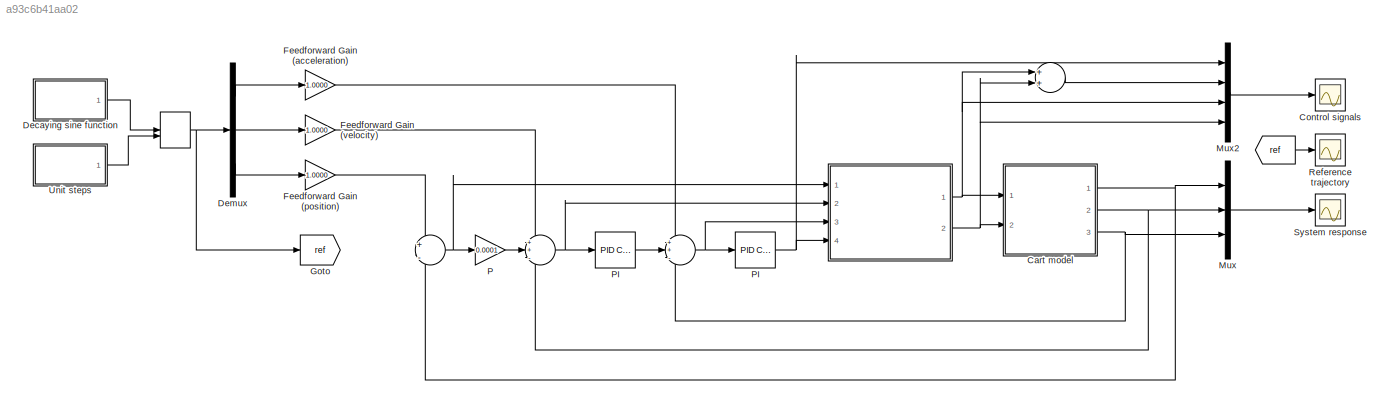
MODEL slx_a93c6b41aa02
KIND model
CONFIG AbsTol = auto
CONFIG FixedStep = auto
CONFIG MaxStep = auto
CONFIG MinStep = auto
CONFIG RelTol = 1e-3
CONFIG SampleTimeConstraint = Unconstrained
CONFIG Solver = VariableStepAuto
CONFIG SolverMode = Auto
CONFIG SolverName = VariableStepAuto
CONFIG StartTime = 0.0
CONFIG StopTime = 10.0
BLOCK [ModelReference]  
  CopyOfModelName = CN_filter.slx
  ModelNameDialog = CN_filter.slx
  ModelReferenceVersion = 1.9
  Ports = [4, 2]
  Variant = off
BLOCK [Sum]   
  InputSameDT = off
  OutDataTypeStr = Inherit: Inherit via internal rule
  Ports = [2, 1]
  SaturateOnIntegerOverflow = off
BLOCK [ManualSwitch]    
BLOCK [From]      
  GotoTag = ref
BLOCK [Sum]         
  IconShape = round
  InputSameDT = off
  Inputs = ++-
  OutDataTypeStr = Inherit: Inherit via internal rule
  Ports = [3, 1]
  SaturateOnIntegerOverflow = off
BLOCK [Sum]          
  IconShape = round
  InputSameDT = off
  Inputs = ++-
  OutDataTypeStr = Inherit: Inherit via internal rule
  Ports = [3, 1]
  SaturateOnIntegerOverflow = off
BLOCK [Sum]            
  IconShape = round
  InputSameDT = off
  Inputs = +|-
  OutDataTypeStr = Inherit: Inherit via internal rule
  Ports = [2, 1]
  SaturateOnIntegerOverflow = off
BLOCK [Reference]   PI      REF=simulink/Continuous/PID Controller
  Ports = [1, 1]
  SourceBlock = simulink/Continuous/PID Controller
  SourceType = PID 1dof
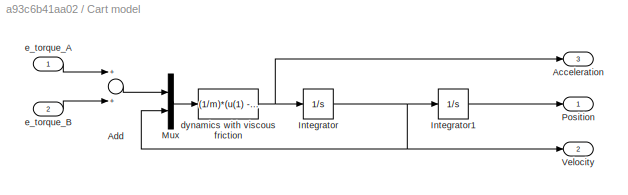
BLOCK [SubSystem] Cart model
  Ports = [2, 3]
  RequestExecContextInheritance = off
  Variant = off
BLOCK [Outport] Cart model/Acceleration
  IconDisplay = Port number
  Port = 3
BLOCK [Sum] Cart model/Add
  InputSameDT = off
  OutDataTypeStr = Inherit: Inherit via internal rule
  Ports = [2, 1]
  SaturateOnIntegerOverflow = off
BLOCK [Integrator] Cart model/Integrator
  Ports = [1, 1]
BLOCK [Integrator] Cart model/Integrator1
  Ports = [1, 1]
BLOCK [Mux] Cart model/Mux
  DisplayOption = bar
  Inputs = 2
  Ports = [2, 1]
BLOCK [Outport] Cart model/Position
  IconDisplay = Port number
BLOCK [Outport] Cart model/Velocity
  IconDisplay = Port number
  Port = 2
BLOCK [Fcn] Cart model/dynamics with viscous friction
  Expr = (1/m)*(u(1) - b*u(2))
BLOCK [Inport] Cart model/e_torque_A
  IconDisplay = Port number
BLOCK [Inport] Cart model/e_torque_B
  IconDisplay = Port number
  Port = 2
BLOCK [Scope] Control signals
  Ports = [1]
  ScopeSpecificationString = Simulink.scopes.TimeScopeBlockCfg('CurrentConfiguration', extmgr.ConfigurationSet(extmgr.Configuration('Core','General UI',true),extmgr.Configuration('Core','Source UI',true),extmgr.Configuration('Sources','WiredSimulink',true,'DataLoggingVariableName','ScopeData2','DataLoggingLimitDataPoints',true,'DataLoggingSaveFormat','Array','DataLoggingDecimation','1','DataLoggingDecimateData',true),extmgr.C...<+1549ch>
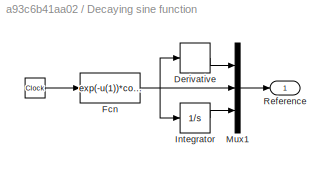
BLOCK [SubSystem] Decaying sine function
  Ports = [0, 1]
  RequestExecContextInheritance = off
  Variant = off
BLOCK [Clock] Decaying sine function/  
BLOCK [Derivative] Decaying sine function/Derivative
BLOCK [Fcn] Decaying sine function/Fcn
  Expr = exp(-u(1))*cos(2*pi*u(1))
BLOCK [Integrator] Decaying sine function/Integrator
  Ports = [1, 1]
BLOCK [Mux] Decaying sine function/Mux1
  DisplayOption = bar
  Inputs = 3
  Ports = [3, 1]
BLOCK [Outport] Decaying sine function/Reference
  IconDisplay = Port number
BLOCK [Demux] Demux
  DisplayOption = bar
  Outputs = 3
  Ports = [1, 3]
BLOCK [Gain] Feedforward Gain (acceleration)
  Gain = 1.0000
  OutDataTypeStr = Inherit: Inherit via internal rule
  ParamDataTypeStr = Inherit: Inherit via internal rule
  SaturateOnIntegerOverflow = off
BLOCK [Gain] Feedforward Gain (position)
  Gain = 1.0000
  OutDataTypeStr = Inherit: Inherit via internal rule
  ParamDataTypeStr = Inherit: Inherit via internal rule
  SaturateOnIntegerOverflow = off
BLOCK [Gain] Feedforward Gain (velocity)
  Gain = 1.0000
  OutDataTypeStr = Inherit: Inherit via internal rule
  ParamDataTypeStr = Inherit: Inherit via internal rule
  SaturateOnIntegerOverflow = off
BLOCK [Goto] Goto
  GotoTag = ref
BLOCK [Mux] Mux
  DisplayOption = bar
  Inputs = 3
  Ports = [3, 1]
BLOCK [Mux] Mux2
  DisplayOption = bar
  Ports = [4, 1]
BLOCK [Gain] P
  Gain = 0.0001
  OutDataTypeStr = Inherit: Inherit via internal rule
  ParamDataTypeStr = Inherit: Inherit via internal rule
  SaturateOnIntegerOverflow = off
BLOCK [Reference] PI  REF=simulink/Continuous/PID Controller
  Ports = [1, 1]
  SourceBlock = simulink/Continuous/PID Controller
  SourceType = PID 1dof
BLOCK [Scope] Reference trajectory
  Ports = [1]
  ScopeSpecificationString = Simulink.scopes.TimeScopeBlockCfg('CurrentConfiguration', extmgr.ConfigurationSet(extmgr.Configuration('Core','General UI',true),extmgr.Configuration('Core','Source UI',true),extmgr.Configuration('Sources','WiredSimulink',true,'DataLoggingVariableName','ScopeData1','DataLoggingLimitDataPoints',true,'DataLoggingSaveFormat','Array','DataLoggingDecimation','1','DataLoggingDecimateData',true),extmgr.C...<+1487ch>
BLOCK [Scope] System response
  Ports = [1]
  ScopeSpecificationString = Simulink.scopes.TimeScopeBlockCfg('CurrentConfiguration', extmgr.ConfigurationSet(extmgr.Configuration('Core','General UI',true),extmgr.Configuration('Core','Source UI',true),extmgr.Configuration('Sources','WiredSimulink',true,'DataLoggingLimitDataPoints',true,'DataLoggingSaveFormat','Array','DataLoggingDecimation','1','DataLoggingDecimateData',true),extmgr.Configuration('Visuals','Time Domain',tr...<+1487ch>
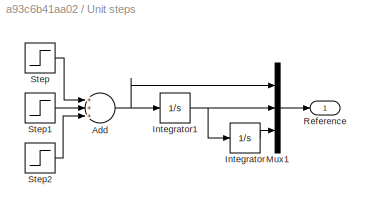
BLOCK [SubSystem] Unit steps
  Ports = [0, 1]
  RequestExecContextInheritance = off
  Variant = off
BLOCK [Sum] Unit steps/Add
  InputSameDT = off
  Inputs = +++
  OutDataTypeStr = Inherit: Inherit via internal rule
  Ports = [3, 1]
  SaturateOnIntegerOverflow = off
BLOCK [Integrator] Unit steps/Integrator
  Ports = [1, 1]
BLOCK [Integrator] Unit steps/Integrator1
  Ports = [1, 1]
BLOCK [Mux] Unit steps/Mux1
  DisplayOption = bar
  Inputs = 3
  Ports = [3, 1]
BLOCK [Outport] Unit steps/Reference
  IconDisplay = Port number
BLOCK [Step] Unit steps/Step
  After = 2
  SampleTime = 0
  Time = 2
BLOCK [Step] Unit steps/Step1
  After = -4
  SampleTime = 0
  Time = 4
BLOCK [Step] Unit steps/Step2
  After = 2
  SampleTime = 0
  Time = 6
NET            :1 ->  :1, P:1
NET          :1 ->  :3, PI:1
NET         :1 ->   PI    :1,  :2
LINE      :1 -> Reference trajectory:1
NET    :1 -> Demux:1, Goto:1
LINE   :1 -> Mux2:2
LINE   PI    :1 ->          :2
NET  :1 ->   :1, Cart model:1, Mux2:3
NET  :2 ->   :2, Cart model:2, Mux2:4
LINE Cart model/Add:1 -> Cart model/Mux:1
LINE Cart model/Integrator1:1 -> Cart model/Position:1
NET Cart model/Integrator:1 -> Cart model/Integrator1:1, Cart model/Mux:2, Cart model/Velocity:1
LINE Cart model/Mux:1 -> Cart model/dynamics with viscous friction:1
NET Cart model/dynamics with viscous friction:1 -> Cart model/Acceleration:1, Cart model/Integrator:1
LINE Cart model/e_torque_A:1 -> Cart model/Add:1
LINE Cart model/e_torque_B:1 -> Cart model/Add:2
NET Cart model:1 ->            :2, Mux:1
NET Cart model:2 ->         :3, Mux:2
NET Cart model:3 ->          :3, Mux:3
LINE Decaying sine function/  :1 -> Decaying sine function/Fcn:1
LINE Decaying sine function/Derivative:1 -> Decaying sine function/Mux1:1
NET Decaying sine function/Fcn:1 -> Decaying sine function/Derivative:1, Decaying sine function/Integrator:1, Decaying sine function/Mux1:2
LINE Decaying sine function/Integrator:1 -> Decaying sine function/Mux1:3
LINE Decaying sine function/Mux1:1 -> Decaying sine function/Reference:1
LINE Decaying sine function:1 ->    :1
LINE Demux:1 -> Feedforward Gain (acceleration):1
LINE Demux:2 -> Feedforward Gain (velocity):1
LINE Demux:3 -> Feedforward Gain (position):1
LINE Feedforward Gain (acceleration):1 ->          :1
LINE Feedforward Gain (position):1 ->            :1
LINE Feedforward Gain (velocity):1 ->         :1
LINE Mux2:1 -> Control signals:1
LINE Mux:1 -> System response:1
LINE P:1 ->         :2
NET PI:1 ->  :4, Mux2:1
NET Unit steps/Add:1 -> Unit steps/Integrator1:1, Unit steps/Mux1:1
NET Unit steps/Integrator1:1 -> Unit steps/Integrator:1, Unit steps/Mux1:2
LINE Unit steps/Integrator:1 -> Unit steps/Mux1:3
LINE Unit steps/Mux1:1 -> Unit steps/Reference:1
LINE Unit steps/Step1:1 -> Unit steps/Add:2
LINE Unit steps/Step2:1 -> Unit steps/Add:3
LINE Unit steps/Step:1 -> Unit steps/Add:1
LINE Unit steps:1 ->    :2
note: NET lines group one-source signal fan-out (src -> all destinations, sorted); 1:1 wires keep LINE
